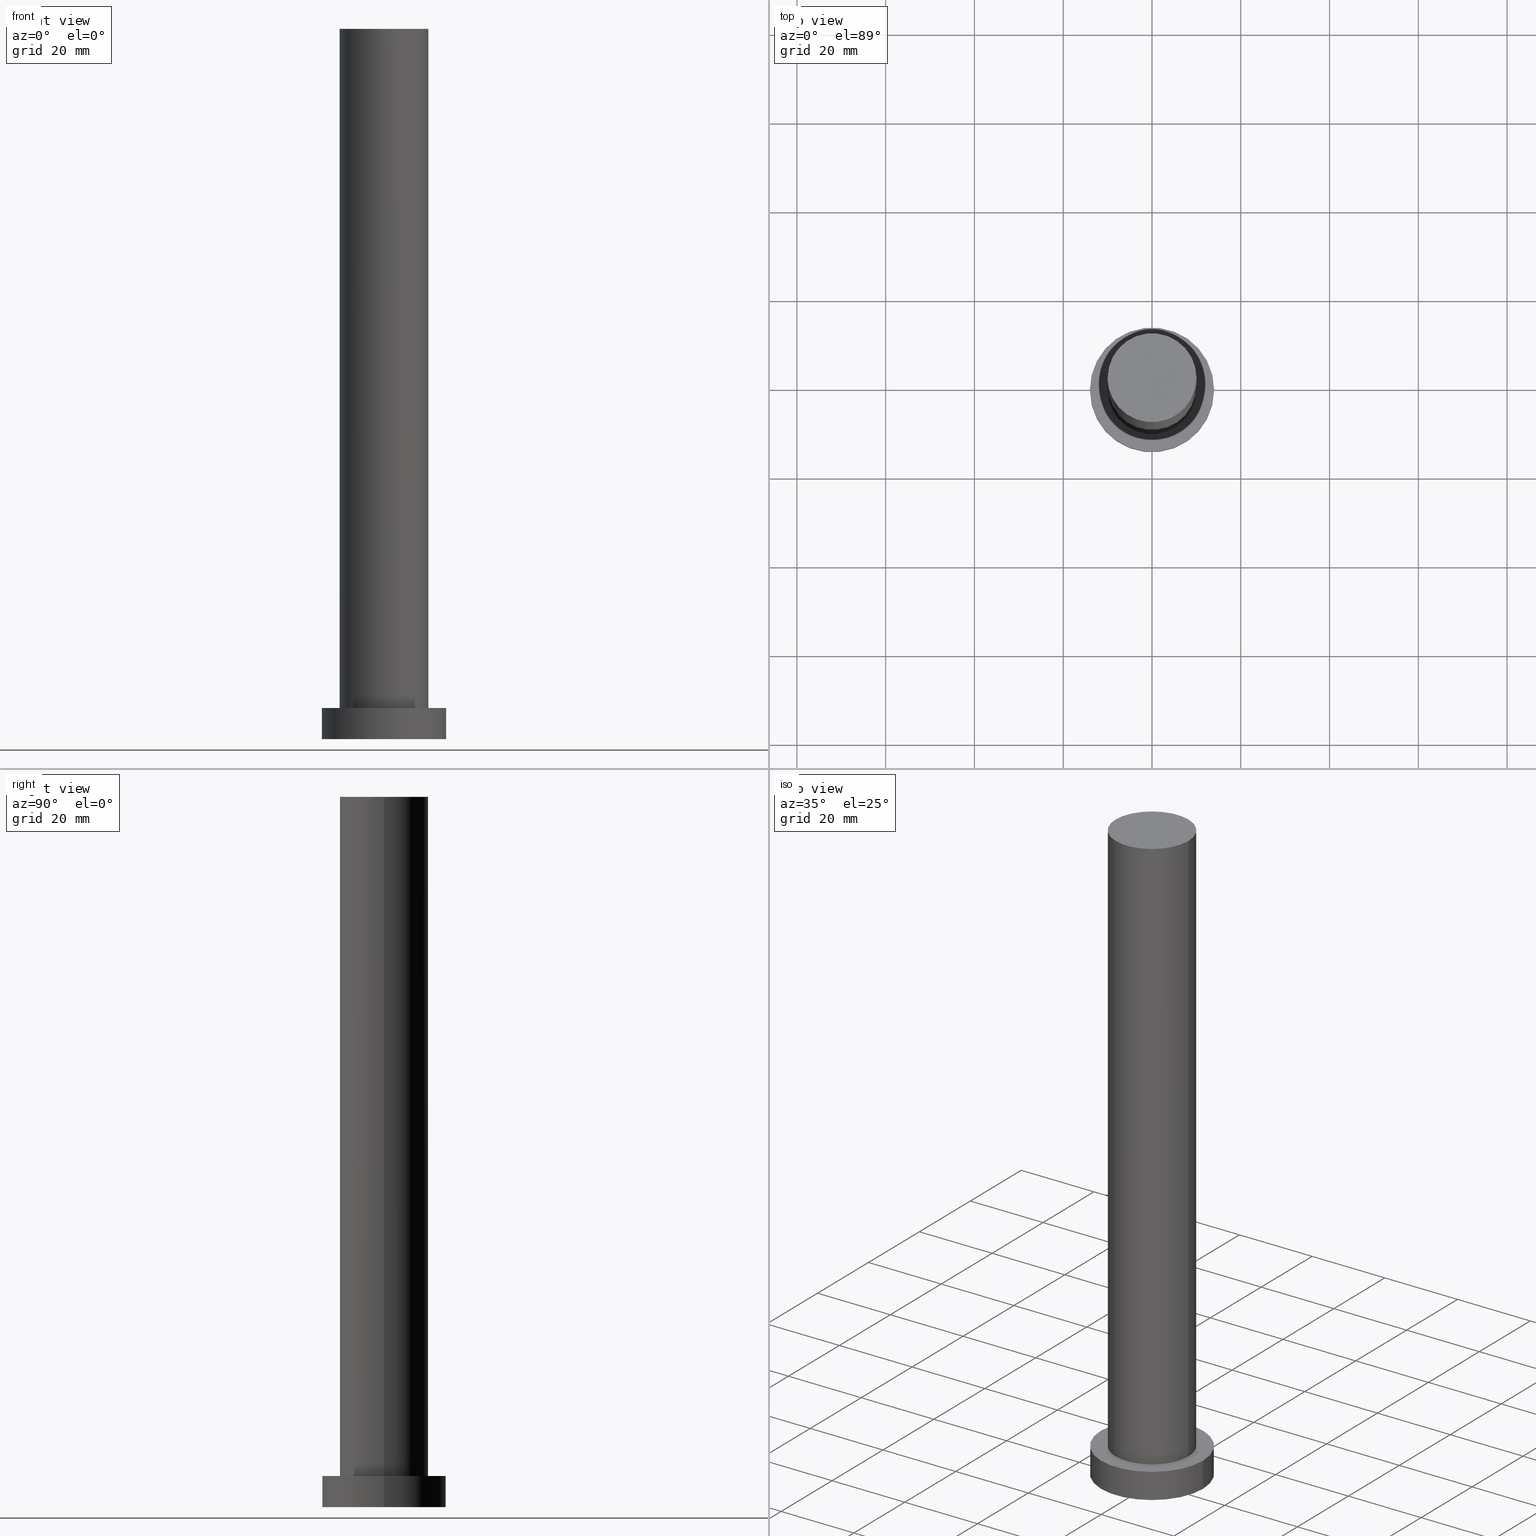
[diagram: canonical four-view strip — front | top / right | iso, engineering-drawing reading convention]
A machine part, canonical four-view strip (front | top / right | iso — engineering-drawing reading convention). The complete STEP part file that produces these views, byte-faithful:
ISO-10303-21;
HEADER;
FILE_DESCRIPTION (( 'STEP AP203' ),
    '1' );
FILE_NAME ('a3b4.STEP',
    '2023-02-13T08:41:35',
    ( '' ),
    ( '' ),
    'SwSTEP 2.0',
    'SolidWorks 2019',
    '' );
FILE_SCHEMA (( 'CONFIG_CONTROL_DESIGN' ));
ENDSEC;

DATA;
#1 = EDGE_CURVE ( 'NONE', #99, #119, #3, .T. ) ;
#2 = FACE_OUTER_BOUND ( 'NONE', #214, .T. ) ;
#3 = CIRCLE ( 'NONE', #13, 14.00000000000000000 ) ;
#4 = DIRECTION ( 'NONE',  ( -1.000000000000000000, 0.000000000000000000, 0.000000000000000000 ) ) ;
#5 = DIRECTION ( 'NONE',  ( 1.000000000000000000, 0.000000000000000000, 0.000000000000000000 ) ) ;
#6 = CARTESIAN_POINT ( 'NONE',  ( 0.000000000000000000, 0.000000000000000000, 7.000000000000000000 ) ) ;
#7 = CIRCLE ( 'NONE', #154, 10.00000000000000000 ) ;
#8 = EDGE_CURVE ( 'NONE', #119, #207, #219, .T. ) ;
#9 = DIRECTION ( 'NONE',  ( 0.000000000000000000, 0.000000000000000000, 1.000000000000000000 ) ) ;
#10 = ORGANIZATION ( 'NEUR�EN�', 'NEUR�EN�', '' ) ;
#11 = CALENDAR_DATE ( 2023, 13, 2 ) ;
#12 = DIRECTION ( 'NONE',  ( 0.000000000000000000, 0.000000000000000000, 1.000000000000000000 ) ) ;
#13 = AXIS2_PLACEMENT_3D ( 'NONE', #234, #127, #5 ) ;
#14 = CARTESIAN_POINT ( 'NONE',  ( 14.00000000000000000, 1.714505518806294638E-15, 0.000000000000000000 ) ) ;
#15 = PERSON_AND_ORGANIZATION_ROLE ( 'creator' ) ;
#16 = ORIENTED_EDGE ( 'NONE', *, *, #143, .F. ) ;
#17 = APPLICATION_PROTOCOL_DEFINITION ( 'international standard', 'config_control_design', 1994, #34 ) ;
#18 = PERSON_AND_ORGANIZATION ( #134, #10 ) ;
#19 = COORDINATED_UNIVERSAL_TIME_OFFSET ( 1, 0, .AHEAD. ) ;
#20 = ORIENTED_EDGE ( 'NONE', *, *, #69, .T. ) ;
#21 = CALENDAR_DATE ( 2023, 13, 2 ) ;
#22 = APPROVAL ( #201, 'NEUR�EN�' ) ;
#23 = LOCAL_TIME ( 9, 41, 35.00000000000000000, #105 ) ;
#24 = LOCAL_TIME ( 9, 41, 35.00000000000000000, #19 ) ;
#25 = ORIENTED_EDGE ( 'NONE', *, *, #65, .T. ) ;
#26 = DATE_AND_TIME ( #182, #24 ) ;
#27 = PLANE ( 'NONE',  #138 ) ;
#28 = APPROVAL_ROLE ( '' ) ;
#29 = FACE_BOUND ( 'NONE', #81, .T. ) ;
#30 = VECTOR ( 'NONE', #249, 1000.000000000000000 ) ;
#31 = ORIENTED_EDGE ( 'NONE', *, *, #225, .F. ) ;
#32 = ADVANCED_FACE ( 'NONE', ( #202 ), #90, .T. ) ;
#33 = CARTESIAN_POINT ( 'NONE',  ( 0.000000000000000000, 0.000000000000000000, 160.0000000000000000 ) ) ;
#34 = APPLICATION_CONTEXT ( 'configuration controlled 3d designs of mechanical parts and assemblies' ) ;
#35 = DIRECTION ( 'NONE',  ( -0.000000000000000000, -0.000000000000000000, -1.000000000000000000 ) ) ;
#36 = SECURITY_CLASSIFICATION ( '', '', #43 ) ;
#37 =( NAMED_UNIT ( * ) SI_UNIT ( $, .STERADIAN. ) SOLID_ANGLE_UNIT ( ) );
#38 = CARTESIAN_POINT ( 'NONE',  ( 0.000000000000000000, 0.000000000000000000, 160.0000000000000000 ) ) ;
#39 = PRODUCT_DEFINITION_FORMATION_WITH_SPECIFIED_SOURCE ( 'LIBOVOLN�', '', #125, .NOT_KNOWN. ) ;
#40 = DIRECTION ( 'NONE',  ( 0.000000000000000000, 0.000000000000000000, 1.000000000000000000 ) ) ;
#41 = APPROVAL_DATE_TIME ( #153, #156 ) ;
#42 = CIRCLE ( 'NONE', #158, 14.00000000000000000 ) ;
#43 = SECURITY_CLASSIFICATION_LEVEL ( 'unclassified' ) ;
#44 = APPROVAL_DATE_TIME ( #116, #213 ) ;
#45 = ORIENTED_EDGE ( 'NONE', *, *, #8, .F. ) ;
#46 = LINE ( 'NONE', #121, #57 ) ;
#47 = DATE_AND_TIME ( #250, #157 ) ;
#48 = CARTESIAN_POINT ( 'NONE',  ( -14.00000000000000000, 0.000000000000000000, 7.000000000000000000 ) ) ;
#49 = CC_DESIGN_PERSON_AND_ORGANIZATION_ASSIGNMENT ( #115, #96, ( #125 ) ) ;
#50 = CARTESIAN_POINT ( 'NONE',  ( 0.000000000000000000, 0.000000000000000000, 0.000000000000000000 ) ) ;
#51 = DIRECTION ( 'NONE',  ( 0.000000000000000000, 0.000000000000000000, 1.000000000000000000 ) ) ;
#52 = DIRECTION ( 'NONE',  ( -0.000000000000000000, -0.000000000000000000, -1.000000000000000000 ) ) ;
#53 = CYLINDRICAL_SURFACE ( 'NONE', #63, 14.00000000000000000 ) ;
#54 = CARTESIAN_POINT ( 'NONE',  ( 0.000000000000000000, 0.000000000000000000, 0.000000000000000000 ) ) ;
#55 = PERSON_AND_ORGANIZATION ( #134, #10 ) ;
#56 = ORIENTED_EDGE ( 'NONE', *, *, #65, .F. ) ;
#57 = VECTOR ( 'NONE', #107, 1000.000000000000000 ) ;
#58 = APPROVAL_ROLE ( '' ) ;
#59 = PRODUCT_RELATED_PRODUCT_CATEGORY ( 'detail', '', ( #125 ) ) ;
#60 = CC_DESIGN_SECURITY_CLASSIFICATION ( #36, ( #39 ) ) ;
#61 = VERTEX_POINT ( 'NONE', #187 ) ;
#62 = ORIENTED_EDGE ( 'NONE', *, *, #147, .F. ) ;
#63 = AXIS2_PLACEMENT_3D ( 'NONE', #111, #152, #155 ) ;
#64 = ORIENTED_EDGE ( 'NONE', *, *, #143, .T. ) ;
#65 = EDGE_CURVE ( 'NONE', #207, #101, #251, .T. ) ;
#66 = PERSON_AND_ORGANIZATION ( #134, #10 ) ;
#67 = FACE_OUTER_BOUND ( 'NONE', #142, .T. ) ;
#68 = CARTESIAN_POINT ( 'NONE',  ( 0.000000000000000000, 0.000000000000000000, 7.000000000000000000 ) ) ;
#69 = EDGE_CURVE ( 'NONE', #99, #101, #87, .T. ) ;
#70 = CYLINDRICAL_SURFACE ( 'NONE', #179, 10.00000000000000000 ) ;
#71 = DIRECTION ( 'NONE',  ( 0.000000000000000000, 0.000000000000000000, 1.000000000000000000 ) ) ;
#72 = CIRCLE ( 'NONE', #215, 10.00000000000000000 ) ;
#73 = DIRECTION ( 'NONE',  ( 0.000000000000000000, 0.000000000000000000, 1.000000000000000000 ) ) ;
#74 =( NAMED_UNIT ( * ) PLANE_ANGLE_UNIT ( ) SI_UNIT ( $, .RADIAN. ) );
#75 = AXIS2_PLACEMENT_3D ( 'NONE', #244, #12, #209 ) ;
#76 = ADVANCED_FACE ( 'NONE', ( #29, #199 ), #167, .T. ) ;
#77 = MECHANICAL_CONTEXT ( 'NONE', #34, 'mechanical' ) ;
#78 = CARTESIAN_POINT ( 'NONE',  ( -10.00000000000000000, 0.000000000000000000, 7.000000000000000000 ) ) ;
#79 = DATE_TIME_ROLE ( 'classification_date' ) ;
#80 = SHAPE_DEFINITION_REPRESENTATION ( #149, #254 ) ;
#81 = EDGE_LOOP ( 'NONE', ( #31, #16 ) ) ;
#82 = ORIENTED_EDGE ( 'NONE', *, *, #8, .T. ) ;
#83 = CARTESIAN_POINT ( 'NONE',  ( 0.000000000000000000, 0.000000000000000000, 7.000000000000000000 ) ) ;
#84 = CARTESIAN_POINT ( 'NONE',  ( -10.00000000000000000, 0.000000000000000000, 160.0000000000000000 ) ) ;
#85 = EDGE_CURVE ( 'NONE', #61, #180, #46, .T. ) ;
#86 = CYLINDRICAL_SURFACE ( 'NONE', #103, 10.00000000000000000 ) ;
#87 = LINE ( 'NONE', #48, #193 ) ;
#88 = CIRCLE ( 'NONE', #141, 10.00000000000000000 ) ;
#89 = CIRCLE ( 'NONE', #75, 14.00000000000000000 ) ;
#90 = PLANE ( 'NONE',  #113 ) ;
#91 = VECTOR ( 'NONE', #35, 1000.000000000000000 ) ;
#92 =( GEOMETRIC_REPRESENTATION_CONTEXT ( 3 ) GLOBAL_UNCERTAINTY_ASSIGNED_CONTEXT ( ( #240 ) ) GLOBAL_UNIT_ASSIGNED_CONTEXT ( ( #169, #74, #37 ) ) REPRESENTATION_CONTEXT ( 'NONE', 'WORKASPACE' ) );
#93 = ADVANCED_FACE ( 'NONE', ( #2 ), #150, .T. ) ;
#94 = DATE_AND_TIME ( #11, #218 ) ;
#95 = ORIENTED_EDGE ( 'NONE', *, *, #85, .T. ) ;
#96 = PERSON_AND_ORGANIZATION_ROLE ( 'design_owner' ) ;
#97 = APPROVAL_PERSON_ORGANIZATION ( #247, #213, #58 ) ;
#98 = PERSON_AND_ORGANIZATION_ROLE ( 'creator' ) ;
#99 = VERTEX_POINT ( 'NONE', #109 ) ;
#100 = ORIENTED_EDGE ( 'NONE', *, *, #139, .T. ) ;
#101 = VERTEX_POINT ( 'NONE', #126 ) ;
#102 = PERSON_AND_ORGANIZATION ( #134, #10 ) ;
#103 = AXIS2_PLACEMENT_3D ( 'NONE', #108, #52, #4 ) ;
#104 = DIRECTION ( 'NONE',  ( 0.000000000000000000, 0.000000000000000000, 1.000000000000000000 ) ) ;
#105 = COORDINATED_UNIVERSAL_TIME_OFFSET ( 1, 0, .AHEAD. ) ;
#106 = CIRCLE ( 'NONE', #203, 10.00000000000000000 ) ;
#107 = DIRECTION ( 'NONE',  ( -0.000000000000000000, -0.000000000000000000, -1.000000000000000000 ) ) ;
#108 = CARTESIAN_POINT ( 'NONE',  ( 0.000000000000000000, 0.000000000000000000, 160.0000000000000000 ) ) ;
#109 = CARTESIAN_POINT ( 'NONE',  ( -14.00000000000000000, 0.000000000000000000, 7.000000000000000000 ) ) ;
#110 = DIRECTION ( 'NONE',  ( 1.000000000000000000, 0.000000000000000000, -0.000000000000000000 ) ) ;
#111 = CARTESIAN_POINT ( 'NONE',  ( 0.000000000000000000, 0.000000000000000000, 7.000000000000000000 ) ) ;
#112 = CC_DESIGN_PERSON_AND_ORGANIZATION_ASSIGNMENT ( #189, #15, ( #159 ) ) ;
#113 = AXIS2_PLACEMENT_3D ( 'NONE', #242, #186, #110 ) ;
#114 = ORIENTED_EDGE ( 'NONE', *, *, #210, .T. ) ;
#115 = PERSON_AND_ORGANIZATION ( #134, #10 ) ;
#116 = DATE_AND_TIME ( #21, #23 ) ;
#117 = APPROVAL_DATE_TIME ( #47, #22 ) ;
#118 = CC_DESIGN_DATE_AND_TIME_ASSIGNMENT ( #26, #79, ( #36 ) ) ;
#119 = VERTEX_POINT ( 'NONE', #220 ) ;
#120 = CC_DESIGN_PERSON_AND_ORGANIZATION_ASSIGNMENT ( #66, #175, ( #36 ) ) ;
#121 = CARTESIAN_POINT ( 'NONE',  ( 10.00000000000000000, 1.224646799147353256E-15, 160.0000000000000000 ) ) ;
#122 = AXIS2_PLACEMENT_3D ( 'NONE', #204, #9, #168 ) ;
#123 = DIRECTION ( 'NONE',  ( -0.000000000000000000, -0.000000000000000000, -1.000000000000000000 ) ) ;
#124 = DIRECTION ( 'NONE',  ( -0.000000000000000000, -0.000000000000000000, -1.000000000000000000 ) ) ;
#125 = PRODUCT ( 'a3b4', 'a3b4', '', ( #77 ) ) ;
#126 = CARTESIAN_POINT ( 'NONE',  ( -14.00000000000000000, 0.000000000000000000, 0.000000000000000000 ) ) ;
#127 = DIRECTION ( 'NONE',  ( 0.000000000000000000, 0.000000000000000000, 1.000000000000000000 ) ) ;
#128 = DESIGN_CONTEXT ( 'detailed design', #185, 'design' ) ;
#129 = CARTESIAN_POINT ( 'NONE',  ( -10.00000000000000000, 0.000000000000000000, 160.0000000000000000 ) ) ;
#130 = ORIENTED_EDGE ( 'NONE', *, *, #69, .F. ) ;
#131 = LOCAL_TIME ( 9, 41, 35.00000000000000000, #135 ) ;
#132 = ADVANCED_FACE ( 'NONE', ( #67 ), #86, .T. ) ;
#133 = APPLICATION_PROTOCOL_DEFINITION ( 'international standard', 'config_control_design', 1994, #185 ) ;
#134 = PERSON ( 'NEUR�EN�', 'NEUR�EN�', 'NEUR�EN�', ('NEUR�EN�'), ('NEUR�EN�'), ('NEUR�EN�') ) ;
#135 = COORDINATED_UNIVERSAL_TIME_OFFSET ( 1, 0, .AHEAD. ) ;
#136 = EDGE_LOOP ( 'NONE', ( #190, #100 ) ) ;
#137 = DIRECTION ( 'NONE',  ( 1.000000000000000000, 0.000000000000000000, 0.000000000000000000 ) ) ;
#138 = AXIS2_PLACEMENT_3D ( 'NONE', #237, #104, #183 ) ;
#139 = EDGE_CURVE ( 'NONE', #119, #99, #42, .T. ) ;
#140 = ORIENTED_EDGE ( 'NONE', *, *, #233, .T. ) ;
#141 = AXIS2_PLACEMENT_3D ( 'NONE', #83, #71, #148 ) ;
#142 = EDGE_LOOP ( 'NONE', ( #177, #62, #140, #178 ) ) ;
#143 = EDGE_CURVE ( 'NONE', #180, #212, #88, .T. ) ;
#144 = DIRECTION ( 'NONE',  ( 1.000000000000000000, 0.000000000000000000, 0.000000000000000000 ) ) ;
#145 = CARTESIAN_POINT ( 'NONE',  ( 0.000000000000000000, 0.000000000000000000, 160.0000000000000000 ) ) ;
#146 = DIRECTION ( 'NONE',  ( -0.000000000000000000, -0.000000000000000000, -1.000000000000000000 ) ) ;
#147 = EDGE_CURVE ( 'NONE', #173, #61, #7, .T. ) ;
#148 = DIRECTION ( 'NONE',  ( 1.000000000000000000, 0.000000000000000000, 0.000000000000000000 ) ) ;
#149 = PRODUCT_DEFINITION_SHAPE ( 'NONE', 'NONE',  #159 ) ;
#150 = CYLINDRICAL_SURFACE ( 'NONE', #221, 14.00000000000000000 ) ;
#151 = DIRECTION ( 'NONE',  ( -1.000000000000000000, 0.000000000000000000, 0.000000000000000000 ) ) ;
#152 = DIRECTION ( 'NONE',  ( -0.000000000000000000, -0.000000000000000000, -1.000000000000000000 ) ) ;
#153 = DATE_AND_TIME ( #174, #131 ) ;
#154 = AXIS2_PLACEMENT_3D ( 'NONE', #33, #162, #144 ) ;
#155 = DIRECTION ( 'NONE',  ( -1.000000000000000000, 0.000000000000000000, 0.000000000000000000 ) ) ;
#156 = APPROVAL ( #171, 'NEUR�EN�' ) ;
#157 = LOCAL_TIME ( 9, 41, 35.00000000000000000, #176 ) ;
#158 = AXIS2_PLACEMENT_3D ( 'NONE', #6, #51, #238 ) ;
#159 = PRODUCT_DEFINITION ( 'NEZN�M�', '', #39, #128 ) ;
#160 = ORIENTED_EDGE ( 'NONE', *, *, #147, .T. ) ;
#161 = ORIENTED_EDGE ( 'NONE', *, *, #139, .F. ) ;
#162 = DIRECTION ( 'NONE',  ( 0.000000000000000000, 0.000000000000000000, 1.000000000000000000 ) ) ;
#163 = PERSON_AND_ORGANIZATION_ROLE ( 'design_supplier' ) ;
#164 = CARTESIAN_POINT ( 'NONE',  ( 10.00000000000000000, 1.224646799147353256E-15, 7.000000000000000000 ) ) ;
#165 = FACE_OUTER_BOUND ( 'NONE', #223, .T. ) ;
#166 = CC_DESIGN_PERSON_AND_ORGANIZATION_ASSIGNMENT ( #18, #98, ( #39 ) ) ;
#167 = PLANE ( 'NONE',  #122 ) ;
#168 = DIRECTION ( 'NONE',  ( 1.000000000000000000, 0.000000000000000000, -0.000000000000000000 ) ) ;
#169 =( LENGTH_UNIT ( ) NAMED_UNIT ( * ) SI_UNIT ( .MILLI., .METRE. ) );
#170 = ADVANCED_FACE ( 'NONE', ( #165 ), #27, .F. ) ;
#171 = APPROVAL_STATUS ( 'not_yet_approved' ) ;
#172 = DATE_TIME_ROLE ( 'creation_date' ) ;
#173 = VERTEX_POINT ( 'NONE', #84 ) ;
#174 = CALENDAR_DATE ( 2023, 13, 2 ) ;
#175 = PERSON_AND_ORGANIZATION_ROLE ( 'classification_officer' ) ;
#176 = COORDINATED_UNIVERSAL_TIME_OFFSET ( 1, 0, .AHEAD. ) ;
#177 = ORIENTED_EDGE ( 'NONE', *, *, #85, .F. ) ;
#178 = ORIENTED_EDGE ( 'NONE', *, *, #225, .T. ) ;
#179 = AXIS2_PLACEMENT_3D ( 'NONE', #145, #123, #151 ) ;
#180 = VERTEX_POINT ( 'NONE', #164 ) ;
#181 = ORIENTED_EDGE ( 'NONE', *, *, #233, .F. ) ;
#182 = CALENDAR_DATE ( 2023, 13, 2 ) ;
#183 = DIRECTION ( 'NONE',  ( 1.000000000000000000, 0.000000000000000000, -0.000000000000000000 ) ) ;
#184 = DIRECTION ( 'NONE',  ( -1.000000000000000000, 0.000000000000000000, 0.000000000000000000 ) ) ;
#185 = APPLICATION_CONTEXT ( 'configuration controlled 3d designs of mechanical parts and assemblies' ) ;
#186 = DIRECTION ( 'NONE',  ( 0.000000000000000000, 0.000000000000000000, 1.000000000000000000 ) ) ;
#187 = CARTESIAN_POINT ( 'NONE',  ( 10.00000000000000000, 1.224646799147353256E-15, 160.0000000000000000 ) ) ;
#188 = COORDINATED_UNIVERSAL_TIME_OFFSET ( 1, 0, .AHEAD. ) ;
#189 = PERSON_AND_ORGANIZATION ( #134, #10 ) ;
#190 = ORIENTED_EDGE ( 'NONE', *, *, #1, .T. ) ;
#191 = ADVANCED_FACE ( 'NONE', ( #236 ), #70, .T. ) ;
#192 = DIRECTION ( 'NONE',  ( 0.000000000000000000, 0.000000000000000000, 1.000000000000000000 ) ) ;
#193 = VECTOR ( 'NONE', #124, 1000.000000000000000 ) ;
#194 = EDGE_CURVE ( 'NONE', #101, #207, #89, .T. ) ;
#195 = AXIS2_PLACEMENT_3D ( 'NONE', #50, #73, #216 ) ;
#196 = CC_DESIGN_APPROVAL ( #156, ( #159 ) ) ;
#197 = ADVANCED_FACE ( 'NONE', ( #224 ), #53, .T. ) ;
#198 = ORIENTED_EDGE ( 'NONE', *, *, #194, .F. ) ;
#199 = FACE_OUTER_BOUND ( 'NONE', #136, .T. ) ;
#200 = CLOSED_SHELL ( 'NONE', ( #191, #93, #197, #76, #170, #132, #32 ) ) ;
#201 = APPROVAL_STATUS ( 'not_yet_approved' ) ;
#202 = FACE_OUTER_BOUND ( 'NONE', #227, .T. ) ;
#203 = AXIS2_PLACEMENT_3D ( 'NONE', #226, #222, #246 ) ;
#204 = CARTESIAN_POINT ( 'NONE',  ( 0.000000000000000000, 0.000000000000000000, 7.000000000000000000 ) ) ;
#205 = CARTESIAN_POINT ( 'NONE',  ( 14.00000000000000000, 1.714505518806294638E-15, 7.000000000000000000 ) ) ;
#206 = ORIENTED_EDGE ( 'NONE', *, *, #194, .T. ) ;
#207 = VERTEX_POINT ( 'NONE', #14 ) ;
#208 = DIRECTION ( 'NONE',  ( 1.000000000000000000, 0.000000000000000000, 0.000000000000000000 ) ) ;
#209 = DIRECTION ( 'NONE',  ( 1.000000000000000000, 0.000000000000000000, 0.000000000000000000 ) ) ;
#210 = EDGE_CURVE ( 'NONE', #61, #173, #72, .T. ) ;
#211 = CC_DESIGN_PERSON_AND_ORGANIZATION_ASSIGNMENT ( #102, #163, ( #39 ) ) ;
#212 = VERTEX_POINT ( 'NONE', #78 ) ;
#213 = APPROVAL ( #228, 'NEUR�EN�' ) ;
#214 = EDGE_LOOP ( 'NONE', ( #161, #82, #25, #130 ) ) ;
#215 = AXIS2_PLACEMENT_3D ( 'NONE', #38, #192, #137 ) ;
#216 = DIRECTION ( 'NONE',  ( 1.000000000000000000, 0.000000000000000000, 0.000000000000000000 ) ) ;
#217 = EDGE_LOOP ( 'NONE', ( #248, #95, #64, #181 ) ) ;
#218 = LOCAL_TIME ( 9, 41, 35.00000000000000000, #188 ) ;
#219 = LINE ( 'NONE', #205, #91 ) ;
#220 = CARTESIAN_POINT ( 'NONE',  ( 14.00000000000000000, 1.714505518806294638E-15, 7.000000000000000000 ) ) ;
#221 = AXIS2_PLACEMENT_3D ( 'NONE', #68, #146, #184 ) ;
#222 = DIRECTION ( 'NONE',  ( 0.000000000000000000, 0.000000000000000000, 1.000000000000000000 ) ) ;
#223 = EDGE_LOOP ( 'NONE', ( #198, #56 ) ) ;
#224 = FACE_OUTER_BOUND ( 'NONE', #253, .T. ) ;
#225 = EDGE_CURVE ( 'NONE', #212, #180, #106, .T. ) ;
#226 = CARTESIAN_POINT ( 'NONE',  ( 0.000000000000000000, 0.000000000000000000, 7.000000000000000000 ) ) ;
#227 = EDGE_LOOP ( 'NONE', ( #160, #114 ) ) ;
#228 = APPROVAL_STATUS ( 'not_yet_approved' ) ;
#229 = LINE ( 'NONE', #129, #30 ) ;
#230 = CC_DESIGN_APPROVAL ( #213, ( #39 ) ) ;
#231 = PERSON_AND_ORGANIZATION ( #134, #10 ) ;
#232 = AXIS2_PLACEMENT_3D ( 'NONE', #54, #40, #208 ) ;
#233 = EDGE_CURVE ( 'NONE', #173, #212, #229, .T. ) ;
#234 = CARTESIAN_POINT ( 'NONE',  ( 0.000000000000000000, 0.000000000000000000, 7.000000000000000000 ) ) ;
#235 = APPROVAL_PERSON_ORGANIZATION ( #55, #156, #243 ) ;
#236 = FACE_OUTER_BOUND ( 'NONE', #217, .T. ) ;
#237 = CARTESIAN_POINT ( 'NONE',  ( 0.000000000000000000, 0.000000000000000000, 0.000000000000000000 ) ) ;
#238 = DIRECTION ( 'NONE',  ( 1.000000000000000000, 0.000000000000000000, 0.000000000000000000 ) ) ;
#239 = MANIFOLD_SOLID_BREP ( 'P�idat vysunut�m3', #200 ) ;
#240 = UNCERTAINTY_MEASURE_WITH_UNIT (LENGTH_MEASURE( 1.000000000000000082E-05 ), #169, 'distance_accuracy_value', 'NONE');
#241 = CC_DESIGN_APPROVAL ( #22, ( #36 ) ) ;
#242 = CARTESIAN_POINT ( 'NONE',  ( 0.000000000000000000, 0.000000000000000000, 160.0000000000000000 ) ) ;
#243 = APPROVAL_ROLE ( '' ) ;
#244 = CARTESIAN_POINT ( 'NONE',  ( 0.000000000000000000, 0.000000000000000000, 0.000000000000000000 ) ) ;
#245 = APPROVAL_PERSON_ORGANIZATION ( #231, #22, #28 ) ;
#246 = DIRECTION ( 'NONE',  ( 1.000000000000000000, 0.000000000000000000, 0.000000000000000000 ) ) ;
#247 = PERSON_AND_ORGANIZATION ( #134, #10 ) ;
#248 = ORIENTED_EDGE ( 'NONE', *, *, #210, .F. ) ;
#249 = DIRECTION ( 'NONE',  ( -0.000000000000000000, -0.000000000000000000, -1.000000000000000000 ) ) ;
#250 = CALENDAR_DATE ( 2023, 13, 2 ) ;
#251 = CIRCLE ( 'NONE', #195, 14.00000000000000000 ) ;
#252 = CC_DESIGN_DATE_AND_TIME_ASSIGNMENT ( #94, #172, ( #159 ) ) ;
#253 = EDGE_LOOP ( 'NONE', ( #45, #255, #20, #206 ) ) ;
#254 = ADVANCED_BREP_SHAPE_REPRESENTATION ( 'a3b4', ( #239, #232 ), #92 ) ;
#255 = ORIENTED_EDGE ( 'NONE', *, *, #1, .F. ) ;
ENDSEC;
END-ISO-10303-21;
